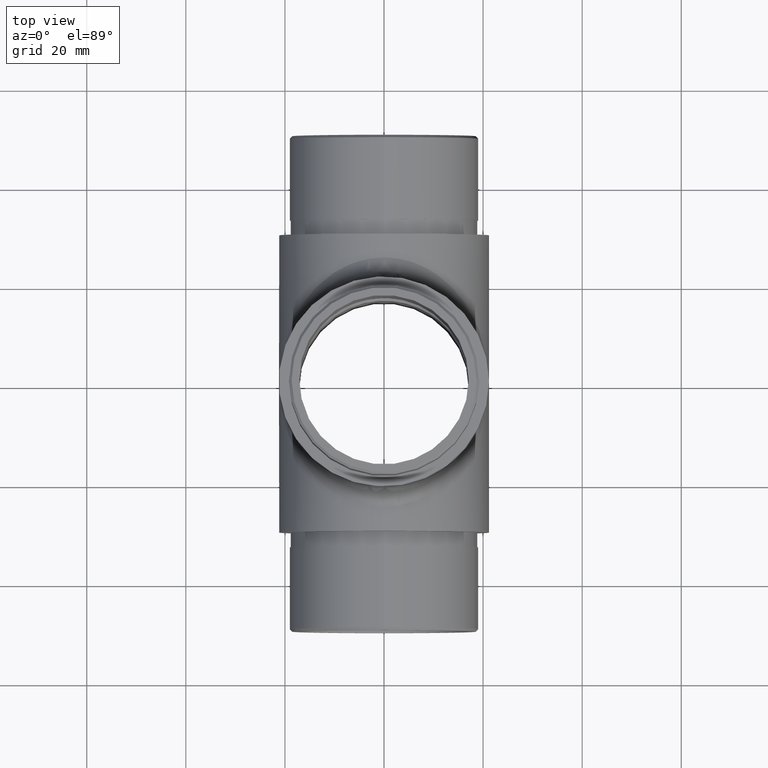
[diagram: clean part render]
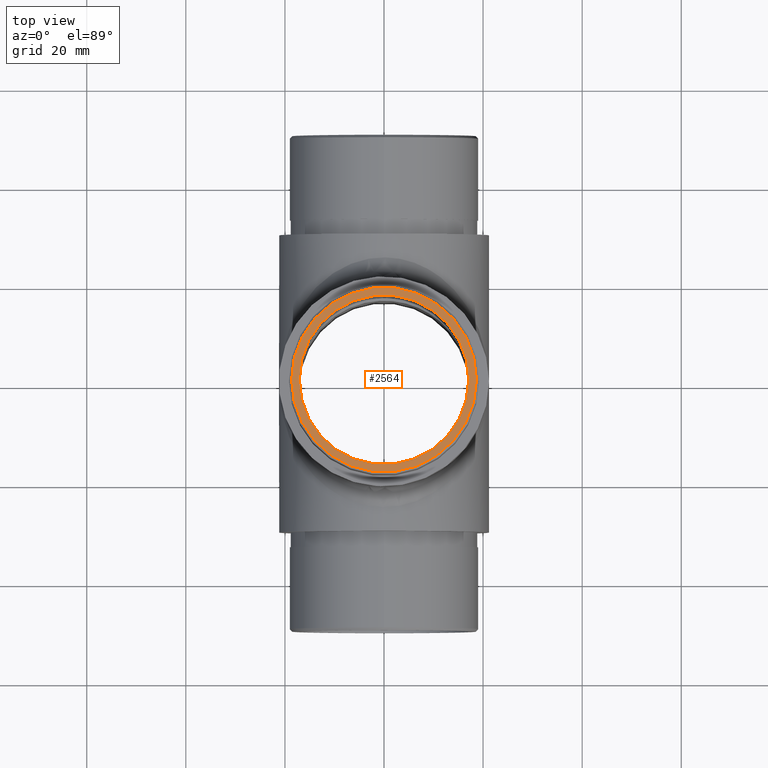
[diagram: same view with one face highlighted and labeled with its STEP entity id]
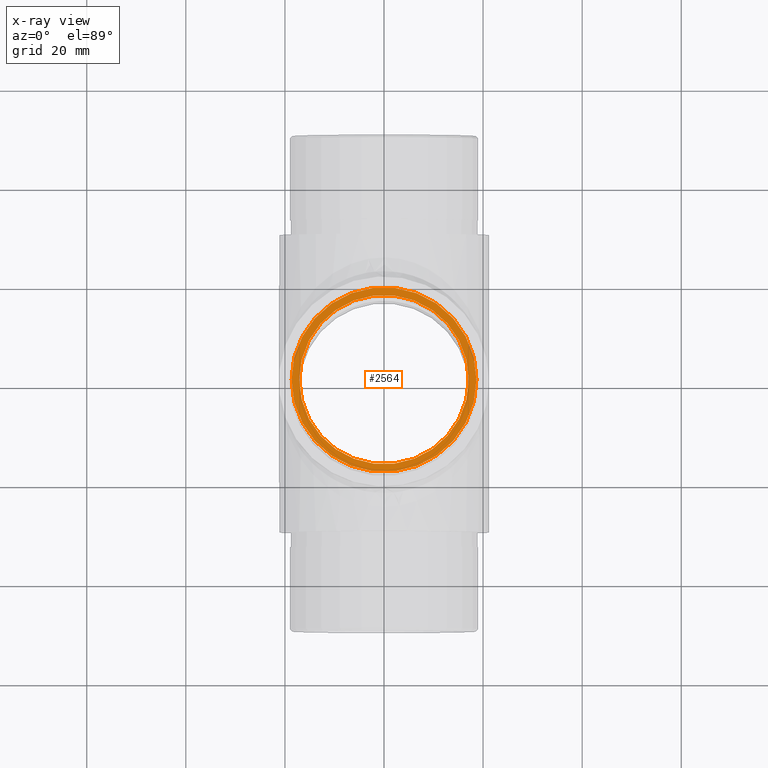
[diagram: x-ray of the same camera — body ghosted, the highlighted face saturated]
A machine part, top view. The second image highlights one B-rep face of the part: STEP entity #2564.
The next image is the same camera in x-ray: the body ghosted, the highlighted face saturated — about 0% of this face is hidden behind the body in this view.
In plain terms, the highlighted planar face has unit normal (0, 0, 1).
Its self-contained STEP definition (entity closure, byte-faithful):
#135 = ORIENTED_EDGE ( 'NONE', *, *, #2405, .F. ) ;
#408 = DIRECTION ( 'NONE',  ( 1.000000000000000000, 0.0000000000000000000, 0.0000000000000000000 ) ) ;
#1671 = CARTESIAN_POINT ( 'NONE',  ( 0.0000000000000000000, 0.0000000000000000000, 50.00000000000000000 ) ) ;
#2306 = EDGE_CURVE ( 'NONE', #9547, #9547, #11660, .T. ) ;
#2405 = EDGE_CURVE ( 'NONE', #5012, #5012, #7645, .T. ) ;
#2412 = CARTESIAN_POINT ( 'NONE',  ( 0.0000000000000000000, 0.0000000000000000000, 50.00000000000000000 ) ) ;
#2534 = PLANE ( 'NONE',  #6478 ) ;
#2564 = ADVANCED_FACE ( 'NONE', ( #8958, #5548 ), #2534, .T. ) ;
#3270 = ORIENTED_EDGE ( 'NONE', *, *, #2306, .T. ) ;
#4900 = EDGE_LOOP ( 'NONE', ( #135 ) ) ;
#5012 = VERTEX_POINT ( 'NONE', #11145 ) ;
#5548 = FACE_BOUND ( 'NONE', #4900, .T. ) ;
#6478 = AXIS2_PLACEMENT_3D ( 'NONE', #2412, #9789, #12829 ) ;
#7645 = CIRCLE ( 'NONE', #8811, 17.09999999999999800 ) ;
#8102 = AXIS2_PLACEMENT_3D ( 'NONE', #12702, #8640, #408 ) ;
#8640 = DIRECTION ( 'NONE',  ( 0.0000000000000000000, 0.0000000000000000000, 1.000000000000000000 ) ) ;
#8811 = AXIS2_PLACEMENT_3D ( 'NONE', #1671, #10947, #10997 ) ;
#8958 = FACE_OUTER_BOUND ( 'NONE', #11612, .T. ) ;
#9083 = CARTESIAN_POINT ( 'NONE',  ( 18.64999999999999900, 0.0000000000000000000, 50.00000000000000000 ) ) ;
#9547 = VERTEX_POINT ( 'NONE', #9083 ) ;
#9789 = DIRECTION ( 'NONE',  ( 0.0000000000000000000, 0.0000000000000000000, 1.000000000000000000 ) ) ;
#10947 = DIRECTION ( 'NONE',  ( 0.0000000000000000000, 0.0000000000000000000, 1.000000000000000000 ) ) ;
#10997 = DIRECTION ( 'NONE',  ( 1.000000000000000000, 0.0000000000000000000, 0.0000000000000000000 ) ) ;
#11145 = CARTESIAN_POINT ( 'NONE',  ( 17.09999999999999800, 0.0000000000000000000, 50.00000000000000000 ) ) ;
#11612 = EDGE_LOOP ( 'NONE', ( #3270 ) ) ;
#11660 = CIRCLE ( 'NONE', #8102, 18.64999999999999900 ) ;
#12702 = CARTESIAN_POINT ( 'NONE',  ( 0.0000000000000000000, 0.0000000000000000000, 50.00000000000000000 ) ) ;
#12829 = DIRECTION ( 'NONE',  ( 1.000000000000000000, 0.0000000000000000000, -0.0000000000000000000 ) ) ;